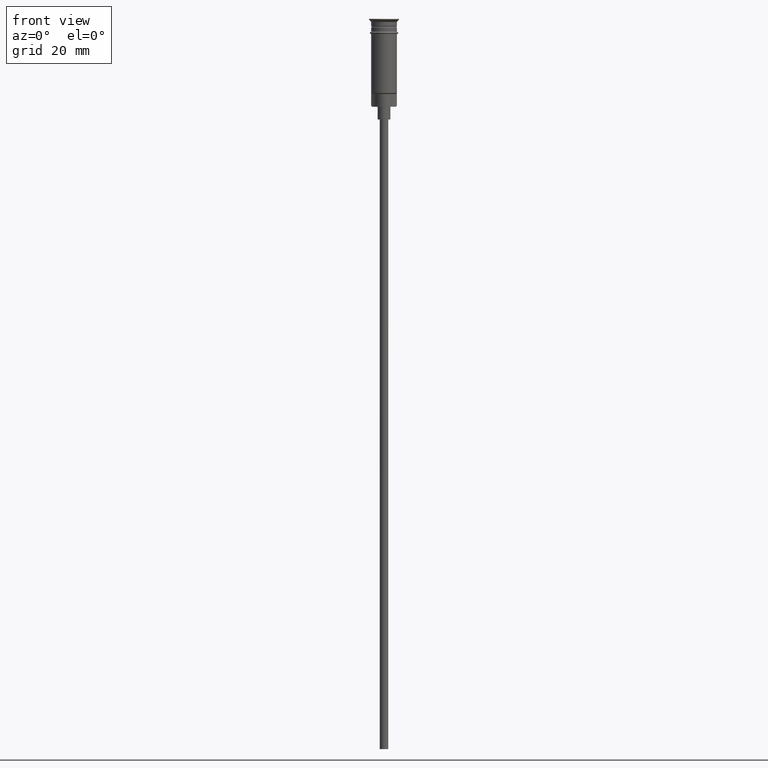
[diagram: clean part render]
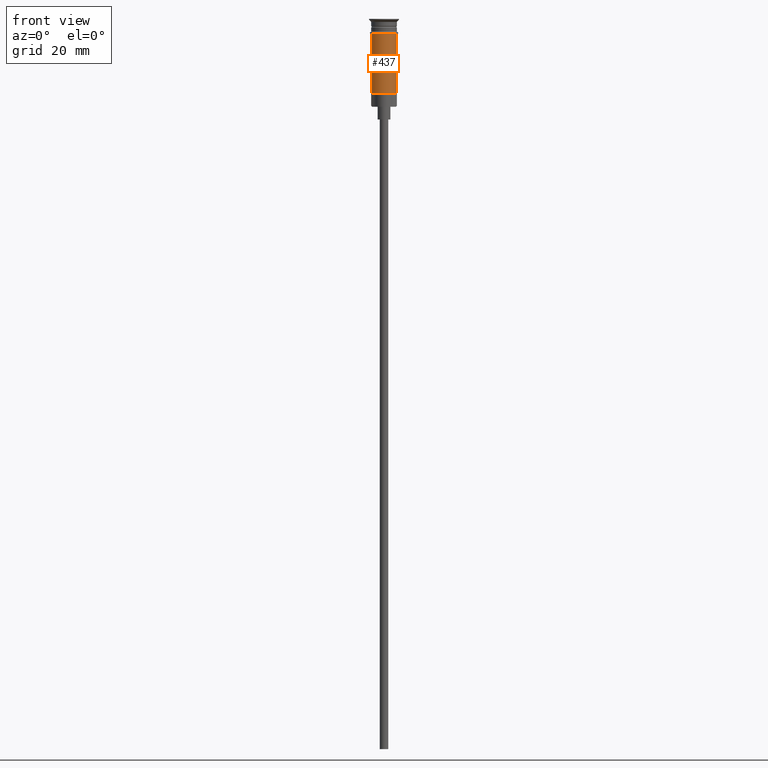
[diagram: same view with one face highlighted and labeled with its STEP entity id]
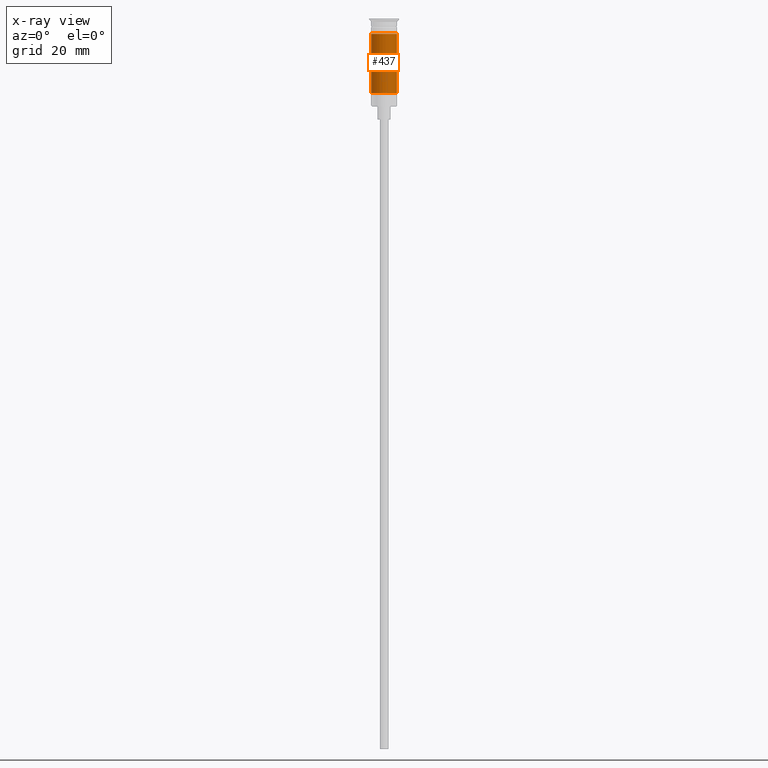
[diagram: x-ray of the same camera — body ghosted, the highlighted face saturated]
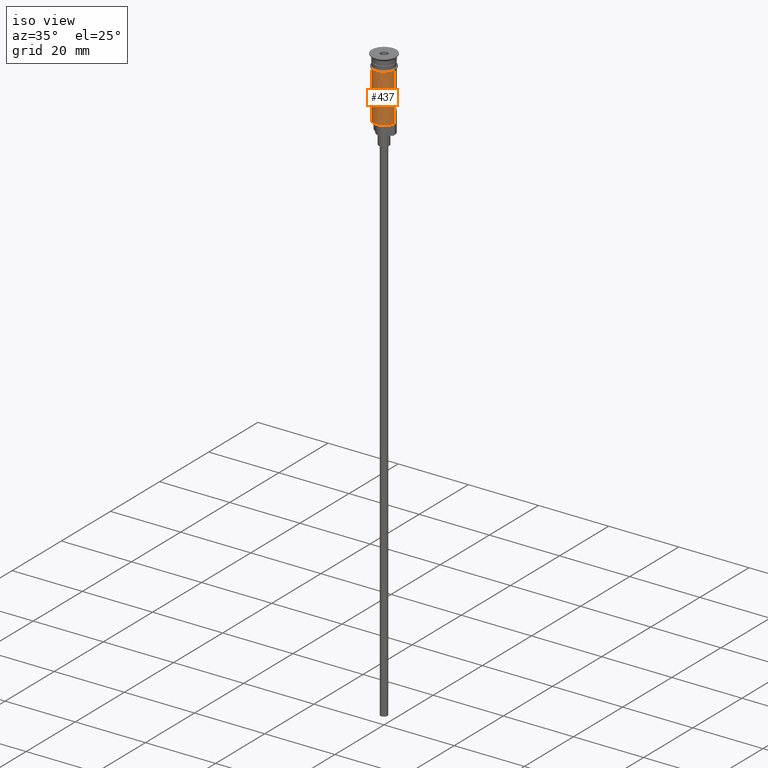
[diagram: same view with one face highlighted and labeled with its STEP entity id]
A machine part, front view. The second image highlights one B-rep face of the part: STEP entity #437.
The next image is the same camera in x-ray: the body ghosted, the highlighted face saturated — about 0% of this face is hidden behind the body in this view.
A second angle (iso view) of the same face is appended — the face is thin or edge-on in the first view.
In plain terms, the highlighted cylindrical surface (edge-blend (fillet) strip) has radius 3 mm, axis along (-0, -0, 1).
Its self-contained STEP definition (entity closure, byte-faithful):
#51 = LINE ( 'NONE', #426, #1279 ) ;
#60 = LINE ( 'NONE', #199, #672 ) ;
#62 = CARTESIAN_POINT ( 'NONE',  ( 0.000000000000000000, 0.000000000000000000, -3.499999999999998668 ) ) ;
#93 = DIRECTION ( 'NONE',  ( 1.000000000000000000, 0.000000000000000000, 0.000000000000000000 ) ) ;
#118 = DIRECTION ( 'NONE',  ( 1.000000000000000000, 0.000000000000000000, 0.000000000000000000 ) ) ;
#133 = CIRCLE ( 'NONE', #1406, 2.999999999999996891 ) ;
#189 = ORIENTED_EDGE ( 'NONE', *, *, #1541, .F. ) ;
#199 = CARTESIAN_POINT ( 'NONE',  ( -2.999999999999996891, 3.673940397442055924E-16, 0.000000000000000000 ) ) ;
#243 = EDGE_CURVE ( 'NONE', #984, #636, #60, .T. ) ;
#357 = DIRECTION ( 'NONE',  ( -0.000000000000000000, -0.000000000000000000, 1.000000000000000000 ) ) ;
#426 = CARTESIAN_POINT ( 'NONE',  ( 2.999999999999996891, 0.000000000000000000, 0.000000000000000000 ) ) ;
#437 = ADVANCED_FACE ( 'NONE', ( #721 ), #660, .T. ) ;
#459 = CARTESIAN_POINT ( 'NONE',  ( 0.000000000000000000, 0.000000000000000000, -17.30000000000000782 ) ) ;
#474 = EDGE_LOOP ( 'NONE', ( #766, #1575, #557, #189 ) ) ;
#500 = EDGE_CURVE ( 'NONE', #575, #1458, #51, .T. ) ;
#550 = DIRECTION ( 'NONE',  ( -0.000000000000000000, -0.000000000000000000, 1.000000000000000000 ) ) ;
#557 = ORIENTED_EDGE ( 'NONE', *, *, #500, .T. ) ;
#575 = VERTEX_POINT ( 'NONE', #1516 ) ;
#627 = CIRCLE ( 'NONE', #654, 2.999999999999998668 ) ;
#636 = VERTEX_POINT ( 'NONE', #1083 ) ;
#654 = AXIS2_PLACEMENT_3D ( 'NONE', #62, #815, #93 ) ;
#660 = CYLINDRICAL_SURFACE ( 'NONE', #1152, 2.999999999999996891 ) ;
#672 = VECTOR ( 'NONE', #832, 1000.000000000000000 ) ;
#721 = FACE_OUTER_BOUND ( 'NONE', #474, .T. ) ;
#766 = ORIENTED_EDGE ( 'NONE', *, *, #243, .F. ) ;
#815 = DIRECTION ( 'NONE',  ( -0.000000000000000000, -0.000000000000000000, 1.000000000000000000 ) ) ;
#832 = DIRECTION ( 'NONE',  ( -0.000000000000000000, -0.000000000000000000, 1.000000000000000000 ) ) ;
#959 = CARTESIAN_POINT ( 'NONE',  ( 0.000000000000000000, 0.000000000000000000, 0.000000000000000000 ) ) ;
#984 = VERTEX_POINT ( 'NONE', #1255 ) ;
#1083 = CARTESIAN_POINT ( 'NONE',  ( -2.999999999999999112, 3.673940397442058389E-16, -3.499999999999998668 ) ) ;
#1092 = EDGE_CURVE ( 'NONE', #984, #575, #133, .T. ) ;
#1152 = AXIS2_PLACEMENT_3D ( 'NONE', #959, #357, #118 ) ;
#1255 = CARTESIAN_POINT ( 'NONE',  ( -2.999999999999995115, 0.000000000000000000, -17.30000000000000782 ) ) ;
#1279 = VECTOR ( 'NONE', #550, 1000.000000000000000 ) ;
#1406 = AXIS2_PLACEMENT_3D ( 'NONE', #459, #1546, #1428 ) ;
#1413 = CARTESIAN_POINT ( 'NONE',  ( 2.999999999999998668, 0.000000000000000000, -3.499999999999998668 ) ) ;
#1428 = DIRECTION ( 'NONE',  ( -1.000000000000000000, 0.000000000000000000, 0.000000000000000000 ) ) ;
#1458 = VERTEX_POINT ( 'NONE', #1413 ) ;
#1516 = CARTESIAN_POINT ( 'NONE',  ( 2.999999999999996891, 3.673940397442055924E-16, -17.30000000000000782 ) ) ;
#1541 = EDGE_CURVE ( 'NONE', #636, #1458, #627, .T. ) ;
#1546 = DIRECTION ( 'NONE',  ( -0.000000000000000000, -0.000000000000000000, 1.000000000000000000 ) ) ;
#1575 = ORIENTED_EDGE ( 'NONE', *, *, #1092, .T. ) ;